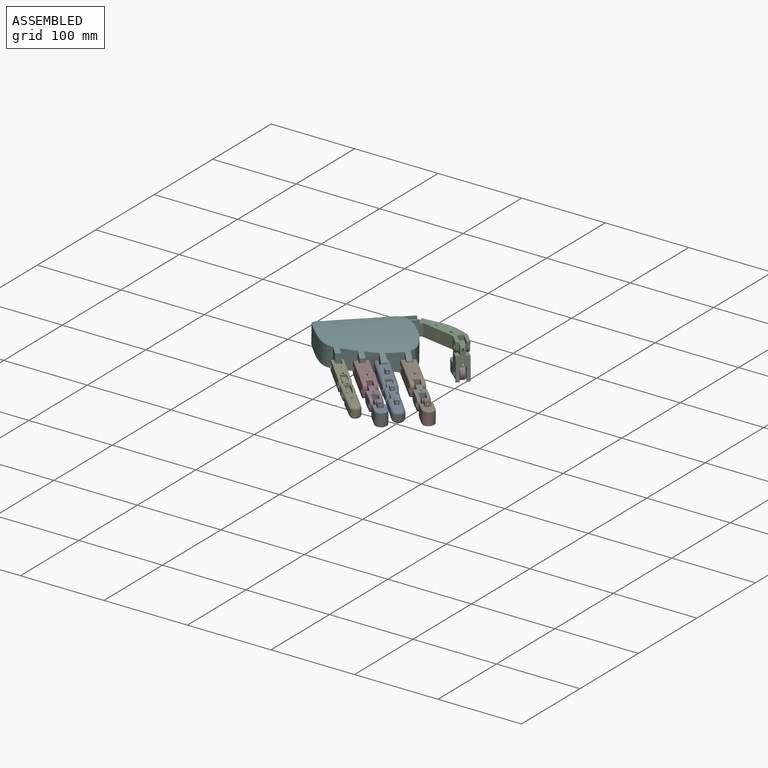
[diagram: assembled view]
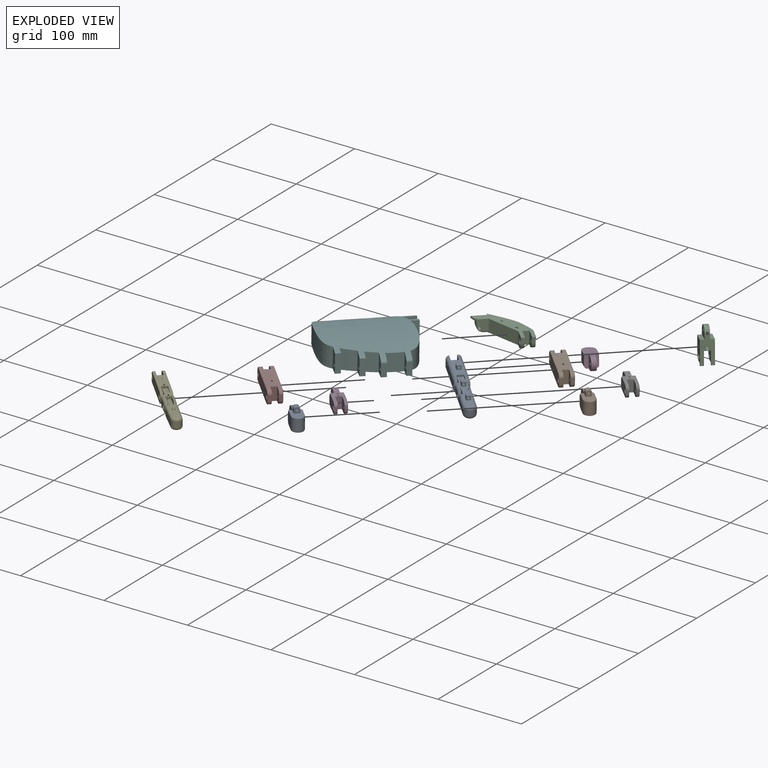
[diagram: exploded view]
GUIDED TOUR — MATED ASSEMBLY WITH SUBASSEMBLIES (Onshape document 58f4713bba5ead0ff602a4fa, AutoMate assembly 58f4713bba5ead0ff602a4fa_5b2b427a5dbaa598ef088df7_5e958202b57f63572089bb10_default)

This assembly has 16 component occurrences arranged in 12 top-level units: 10 individual components plus 2 subassemblies (S0, S1). The tour has two levels: first the top level, where each subassembly is treated as one rigid unit; then each subassembly is toured internally in its own section (nesting deeper than one subassembly level is flattened into its subassembly's section).

Components are labeled P0..P15 across the whole record; subassembly units are labeled S0..S1. A mate is a constraint between two units; its type names the relative motion it leaves free:
  REVOLUTE — leaves rotation about the listed axis free (a hinge).
Axis/direction vectors are unit vectors and 'through' points are millimeter coordinates, both in the assembly's world frame.

TOP-LEVEL MATES (between units; each subassembly's internal mates are listed in its own section)
  1. REVOLUTE "Revolute 3": P6 <-> P2, axis (-0.707, -0.707, 0.011) through (-216.11, -60.89, -3.54) mm
  2. REVOLUTE "Revolute 1": P9 <-> P14, axis (0.707, 0.707, -0.011) through (-218.39, -124.71, -5.03) mm
  3. REVOLUTE "Revolute 9": P3 <-> P4, axis (-0.707, -0.707, 0.008) through (-193.27, 8.58, -29.24) mm
  4. REVOLUTE "Revolute 1": P2 <-> P7, axis (0.707, 0.707, -0.011) through (-181.84, -95.89, -5.03) mm
  5. REVOLUTE "Revolute 4": P6 <-> P9, axis (0.707, 0.707, -0.011) through (-248.04, -85.13, -3.03) mm
  6. REVOLUTE "Revolute 5": S1 <-> P6, axis (0.707, 0.707, -0.011) through (-275.56, -99.13, -2.62) mm
  7. REVOLUTE "Revolute 2": P12 <-> P7, axis (-0.707, -0.707, 0.011) through (-156.74, -120.28, -5.03) mm
  8. REVOLUTE "Revolute 6": S0 <-> P6, axis (-0.707, -0.707, 0.011) through (-229.83, -74.61, -3.31) mm
  9. REVOLUTE "Revolute 2": P11 <-> P14, axis (-0.707, -0.707, 0.011) through (-193.29, -149.10, -5.03) mm
  10. REVOLUTE "Revolute 8": P13 <-> P3, axis (-0.707, -0.707, 0.008) through (-194.69, 10.30, -1.33) mm

TOP-LEVEL ASSEMBLY ORDER
  1. P6 — the base component [order heuristic]
  2. S0 — core [order heuristic]
  3. P14 [order verified]
  4. P13 — core [order heuristic]
  5. P4 — core [order heuristic]
  6. P9 — core [order heuristic]
  7. P2 — core [order heuristic]
  8. P3 — core [order heuristic]
  9. P11 [order verified]
  10. P12 [order verified]
  11. P7 [order verified]
  12. S1 — core [order heuristic]
Order-tag legend:
  [order verified] — this step's position reverses a verified removal order: the component was checked to insert without passing through the ones already placed.
  [order heuristic] — the first 8 components form the assembly's core: parts whose collision-free extraction could not be verified, listed in mate-graph order.

Of the 16 component occurrences, 3 carry the full construction recipe — the FeatureScript program that regenerates the part's solid from scratch; the rest are supplied as boundary geometry only. Each toured unit is shown spotlighted twice — assembled, then exploded with a leader line back to its socket (green = recipe-attached component, orange = geometry-only, blue = subassembly unit; the rest desaturated gray).
NOTE — this tour is split across 2 documents so each fits a 32k-token context. This is document 1: the component sections continue in the remaining 1 document, each repeating the header above.
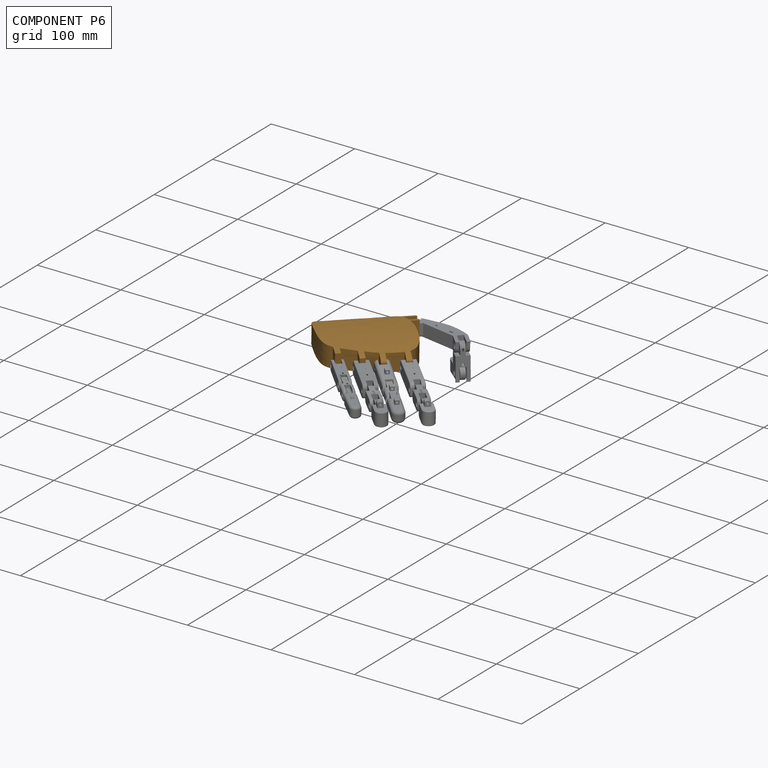
[diagram: component P6 — assembled]
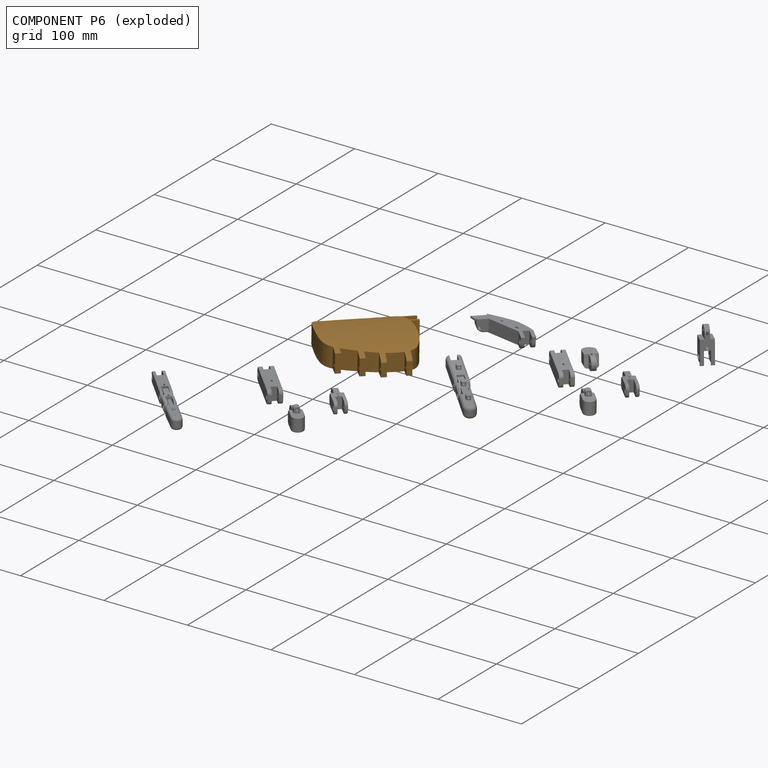
[diagram: component P6 — exploded]
COMPONENT P6 — geometry summary (no construction recipe available for this part):
  bounding box: 107.3 x 102.2 x 24.7 mm
  B-rep topology: 1 solid, 39 faces, 232 edges
  volume: 192250 mm^3 (71% of its bounding box)
Held by: REVOLUTE mate "Revolute 3" to P2; REVOLUTE mate "Revolute 4" to P9; REVOLUTE mate "Revolute 5" to P5; REVOLUTE mate "Revolute 6" to P0.
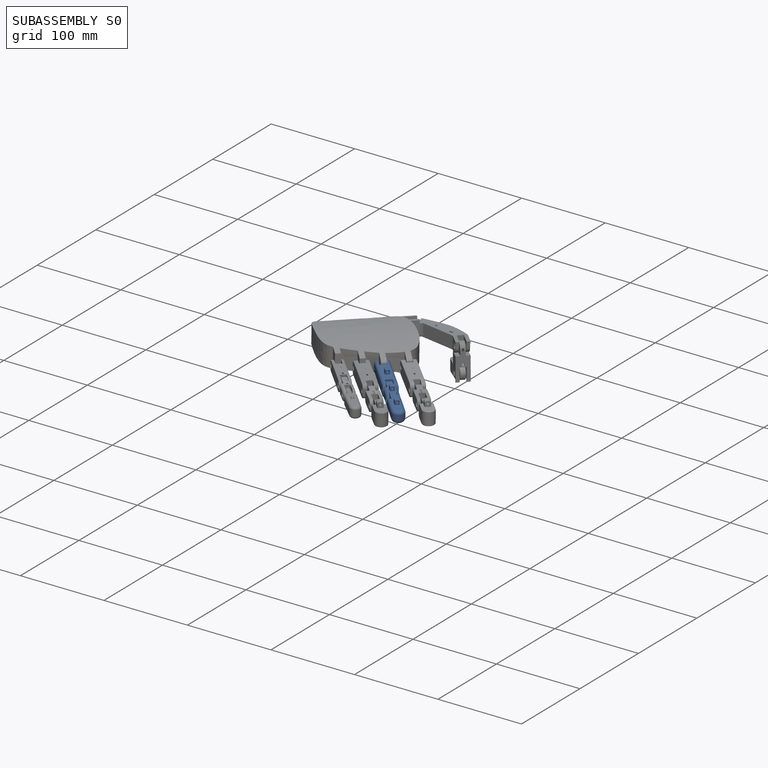
[diagram: subassembly S0 — assembled]
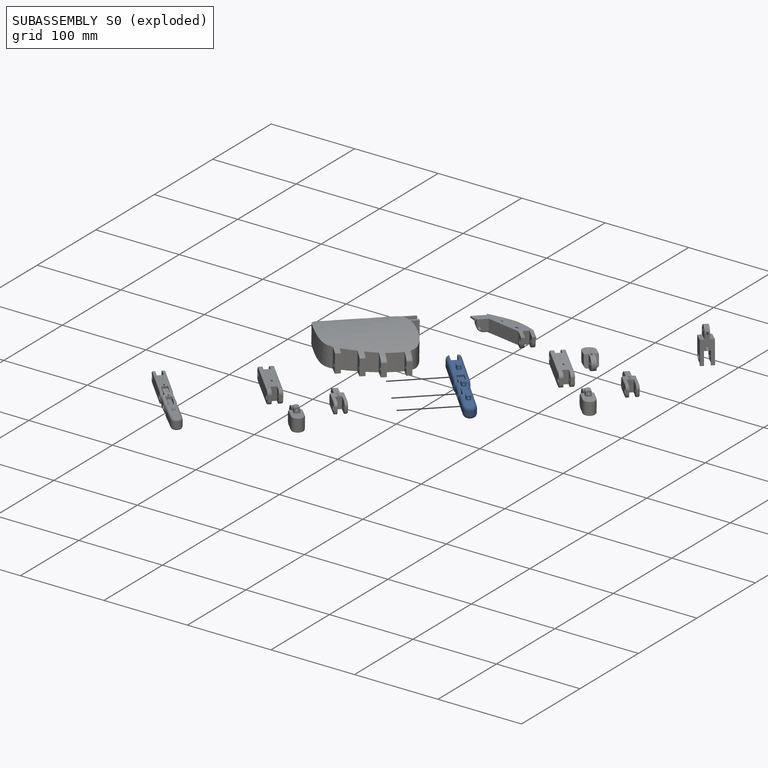
[diagram: subassembly S0 — exploded]
SUBASSEMBLY S0 — 3 components (P0, P1, P10), of which 0 recipe-attached; toured below.
Held by: REVOLUTE mate "Revolute 6" to P6.
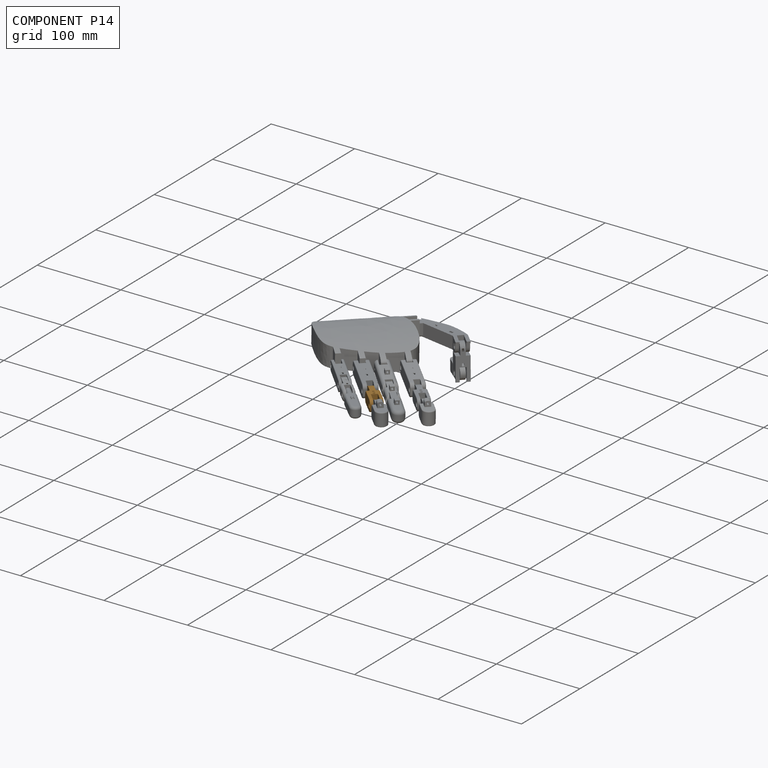
[diagram: component P14 — assembled]
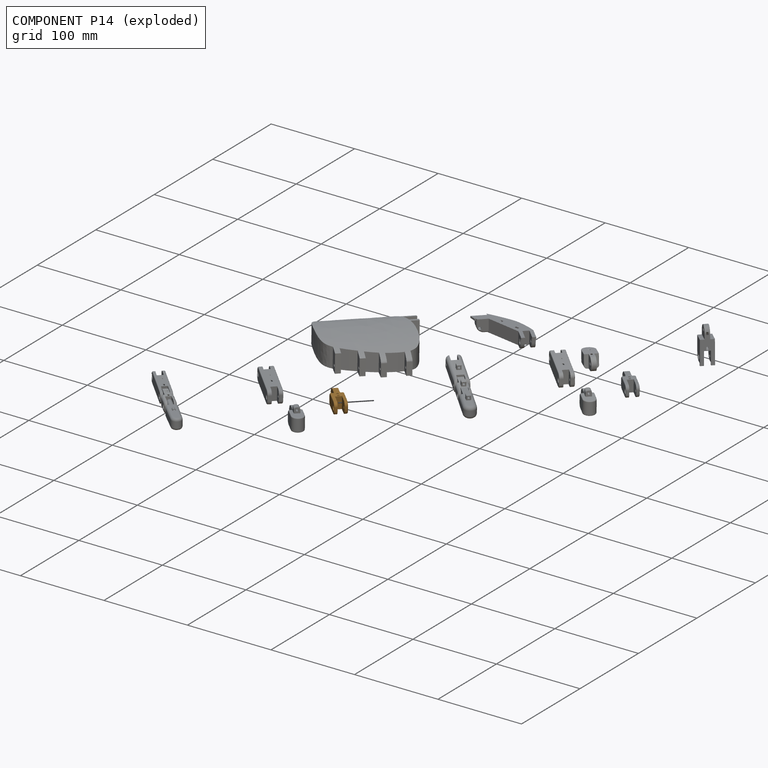
[diagram: component P14 — exploded]
COMPONENT P14 — geometry summary (no construction recipe available for this part):
  bounding box: 42.5 x 14.8 x 14.0 mm
  B-rep topology: 1 solid, 67 faces, 348 edges
  volume: 4544 mm^3 (52% of its bounding box)
  symmetry: mirror-symmetric across its y mid-plane
Held by: REVOLUTE mate "Revolute 1" to P9; REVOLUTE mate "Revolute 2" to P11.
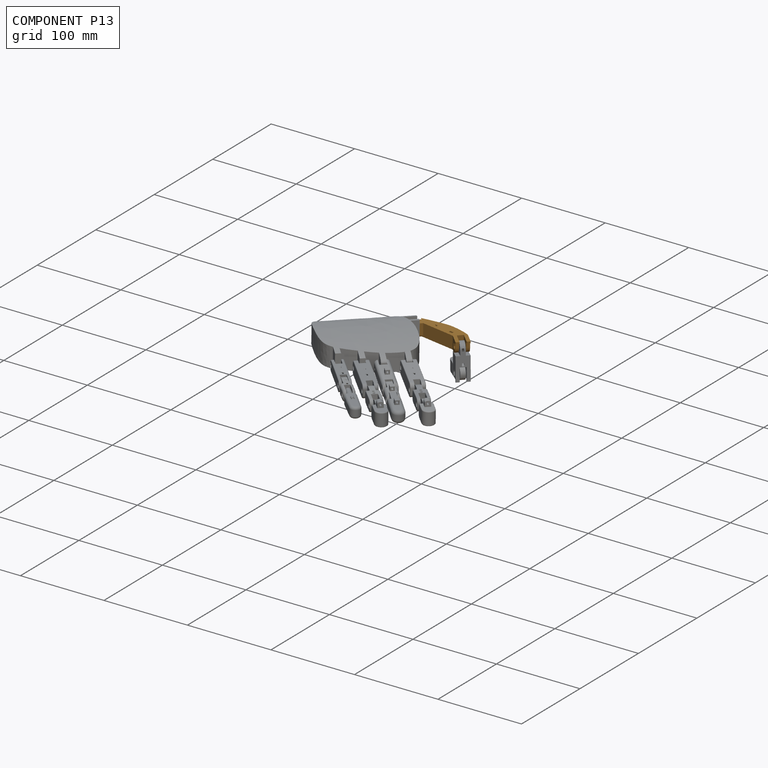
[diagram: component P13 — assembled]
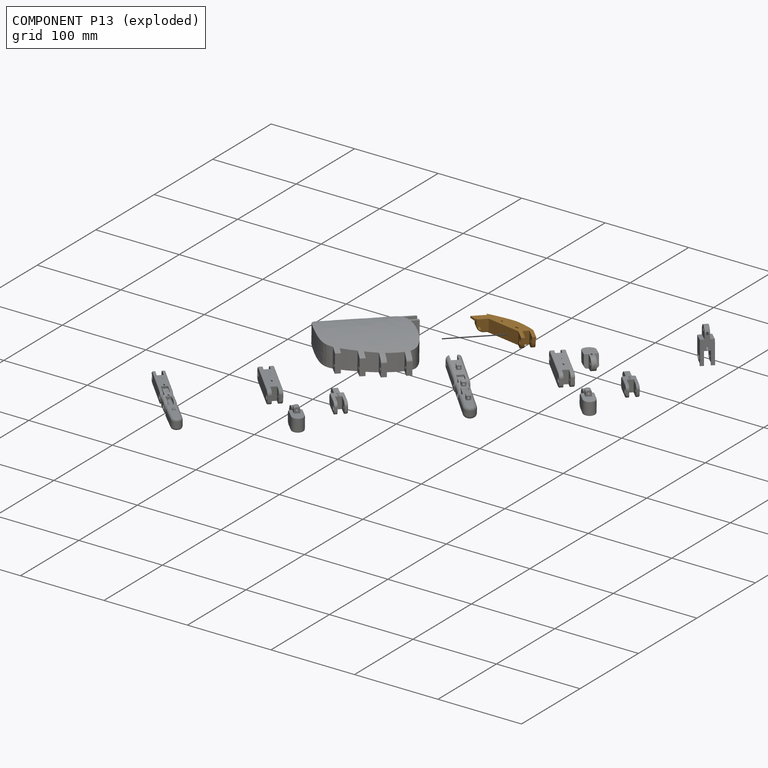
[diagram: component P13 — exploded]
COMPONENT P13 — geometry summary (no construction recipe available for this part):
  bounding box: 60.6 x 55.5 x 15.7 mm
  B-rep topology: 1 solid, 48 faces, 268 edges
  volume: 12539 mm^3 (24% of its bounding box)
Held by: REVOLUTE mate "Revolute 8" to P3.
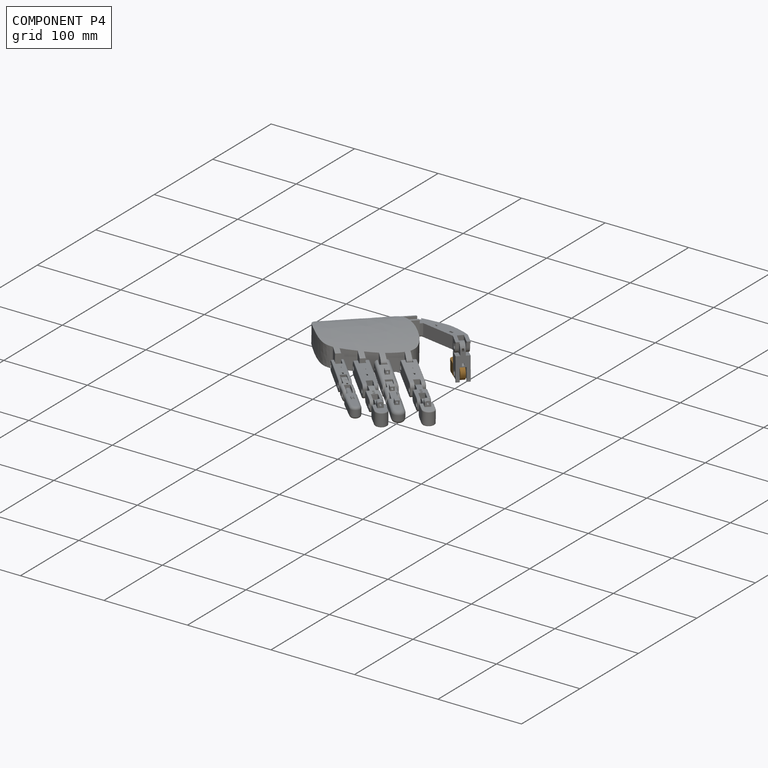
[diagram: component P4 — assembled]
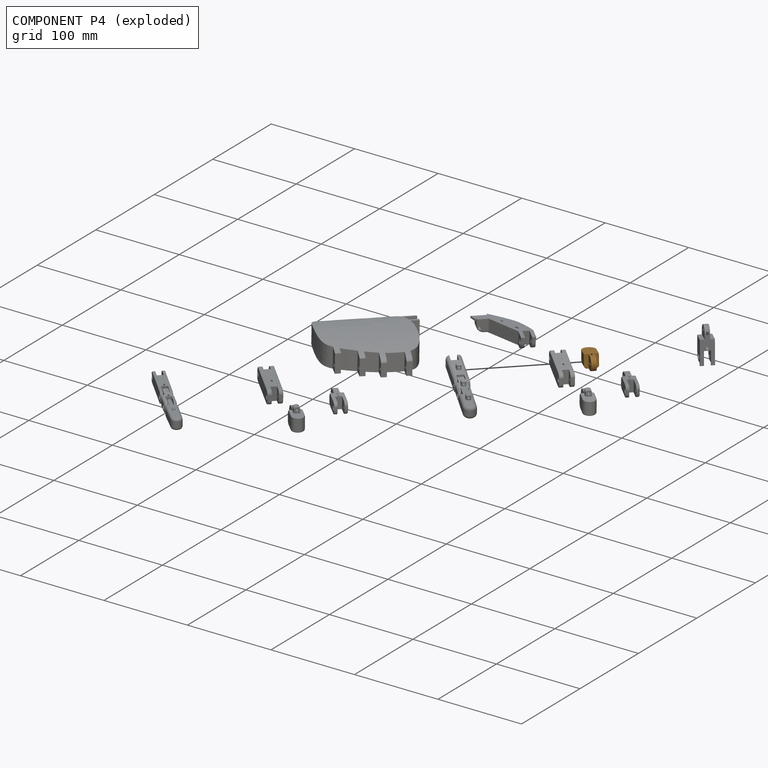
[diagram: component P4 — exploded]
COMPONENT P4 — geometry summary (no construction recipe available for this part):
  bounding box: 37.6 x 16.2 x 15.0 mm
  B-rep topology: 1 solid, 22 faces, 116 edges
  volume: 5392 mm^3 (59% of its bounding box)
  symmetry: mirror-symmetric across its x mid-plane
Held by: REVOLUTE mate "Revolute 9" to P3.
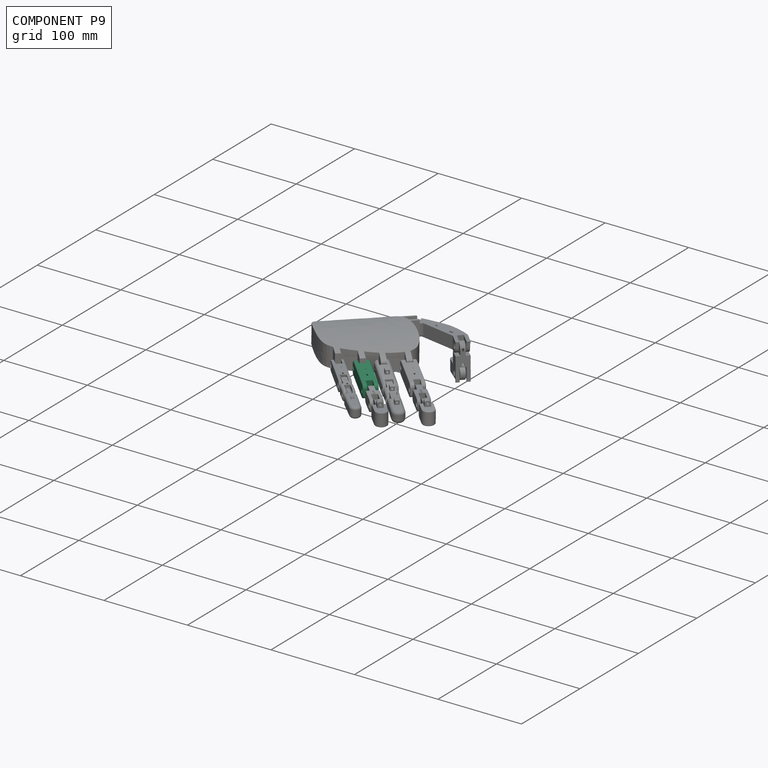
[diagram: component P9 — assembled]
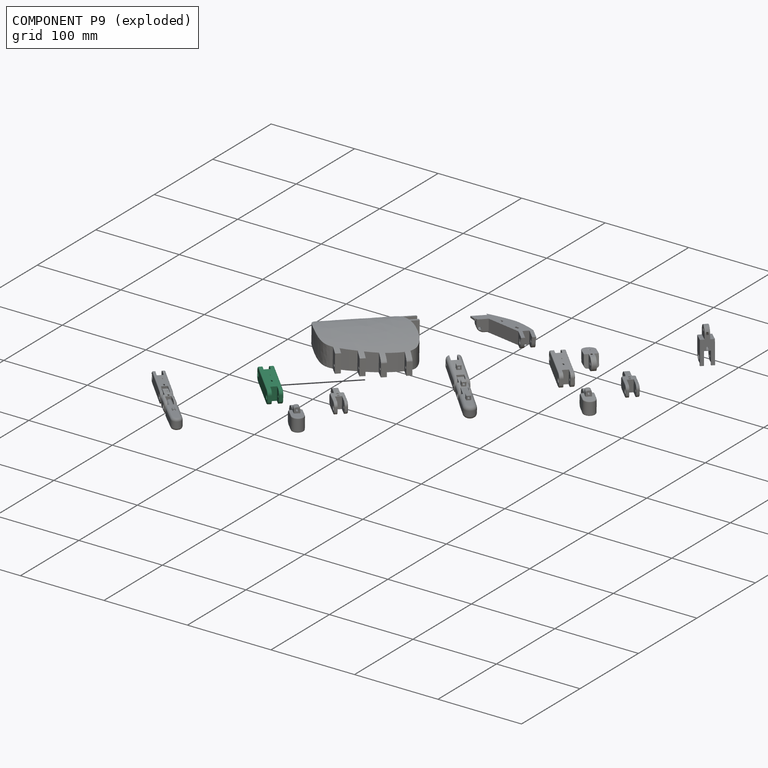
[diagram: component P9 — exploded]
COMPONENT P9 — same part as P2 (CADFS 00713738); its construction recipe is shown at P2.
Held by: REVOLUTE mate "Revolute 1" to P14; REVOLUTE mate "Revolute 4" to P6.
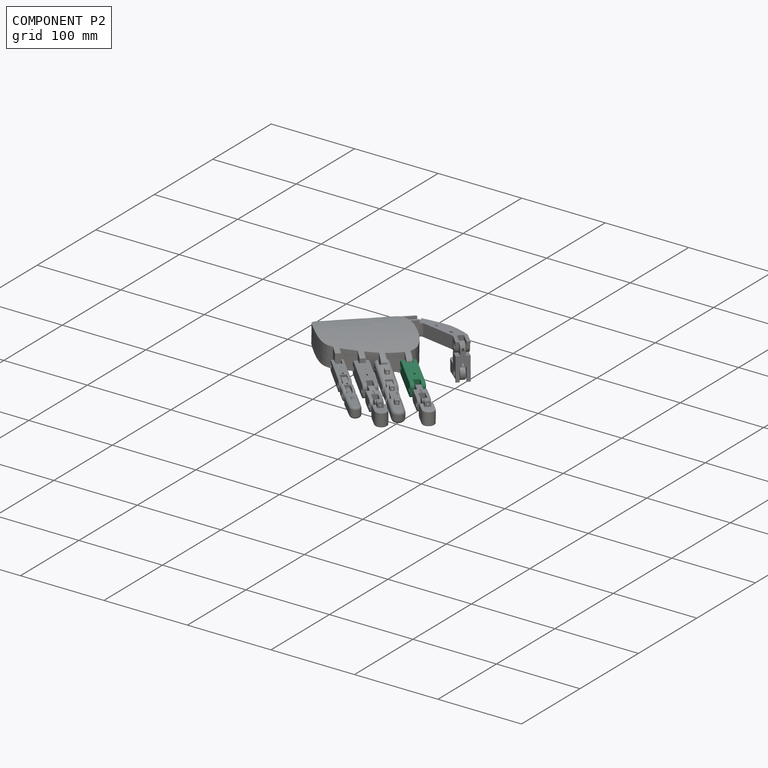
[diagram: component P2 — assembled]
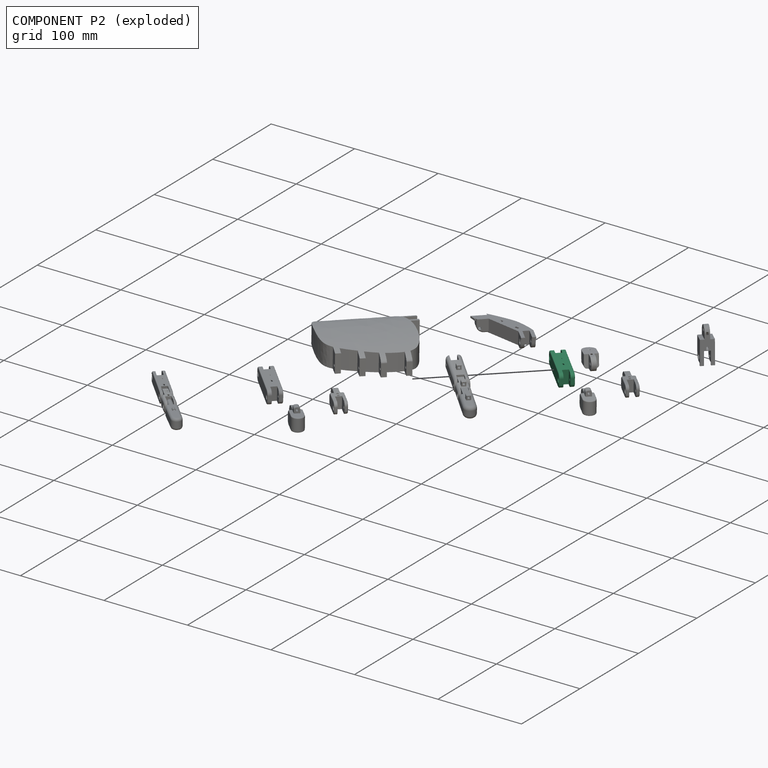
[diagram: component P2 — exploded]
COMPONENT P2 — recipe-attached (CADFS 00713738, mesh-verified: the recipe's output STEP matches this component's geometry to below the mesh-comparison resolution (tessellation chordal tolerance ~0.0957 mm)).
Held by: REVOLUTE mate "Revolute 3" to P6; REVOLUTE mate "Revolute 1" to P7.
Construction recipe (FeatureScript — the CAD program that rebuilds this solid; sketch coordinates are in the units given by the * unit suffixes, e.g. mm):

FeatureScript 1511;
import(path : "onshape/std/geometry.fs", version : "1511.0");
import(path : "onshape/std/common.fs", version : "1511.0");
const mm = millimeter;
const VERTEX = EntityType.VERTEX;
const EDGE = EntityType.EDGE;
const FACE = EntityType.FACE;
const BODY = EntityType.BODY;
function v(x, y){return vector(x, y);}
function OD(order){return orderDisambiguation(order);}
function OSD(set){return originalSetDisambiguation(set);}
function TD(topology){return topologyDisambiguation(topology);}
function TDD(query){return trueDependencyDisambiguation(query);}
function sQuery(a, b, c) {return sketchEntityQuery(a, b, c);}

annotation { "Feature Type Name" : "Feature", "Feature Type Description" : "" }
export const myFeature = defineFeature(function(context is Context, id is Id, definition is map)
    precondition{}
    {
        {
            var Q0;
            Q0=qCreatedBy(makeId("Front.planeOp"),FACE);
            var sketch = newSketch(context, id + "F0", { "sketchPlane" : qUnion([Q0])});
            skLineSegment(sketch, "E0.bottom", {"start": v(8, -28.75) * mm, "end": v(-8, -28.75) * mm});
            skLineSegment(sketch, "E0.top", {"start": v(8, 28.75) * mm, "end": v(-8, 28.75) * mm});
            skLineSegment(sketch, "E0.left", {"start": v(8, -28.75) * mm, "end": v(8, 28.75) * mm});
            skLineSegment(sketch, "E0.right", {"start": v(-8, -28.75) * mm, "end": v(-8, 28.75) * mm});
            skPoint(sketch, "E0.middle", {"position": v(0, 0) * mm});
            skLineSegment(sketch, "E1.top", {"start": v(-3.5, -18.75) * mm, "end": v(3.5, -18.75) * mm});
            skLineSegment(sketch, "E1.left", {"start": v(-3.5, -28.75) * mm, "end": v(-3.5, -18.75) * mm});
            skLineSegment(sketch, "E1.right", {"start": v(3.5, -28.75) * mm, "end": v(3.5, -18.75) * mm});
            skLineSegment(sketch, "E2.bottom", {"start": v(-3.5, 28.75) * mm, "end": v(3.5, 28.75) * mm});
            skLineSegment(sketch, "E2.top", {"start": v(-3.5, 18.75) * mm, "end": v(3.5, 18.75) * mm});
            skLineSegment(sketch, "E2.left", {"start": v(-3.5, 28.75) * mm, "end": v(-3.5, 18.75) * mm});
            skLineSegment(sketch, "E2.right", {"start": v(3.5, 28.75) * mm, "end": v(3.5, 18.75) * mm});
            skPoint(sketch, "E3", {"position": v(0, 23) * mm});
            skPoint(sketch, "E4", {"position": v(0, -26) * mm});
            skPoint(sketch, "E5", {"position": v(0, 18.75) * mm});
            skLineSegment(sketch, "E6", {"start": v(-3.5, -28.75) * mm, "end": v(3.5, -28.75) * mm});
            skLineSegment(sketch, "E7.bottom", {"start": v(3.25, 3.75) * mm, "end": v(-3.25, 3.75) * mm});
            skLineSegment(sketch, "E7.top", {"start": v(3.25, -3.75) * mm, "end": v(-3.25, -3.75) * mm});
            skLineSegment(sketch, "E7.left", {"start": v(3.25, 3.75) * mm, "end": v(3.25, -3.75) * mm});
            skLineSegment(sketch, "E7.right", {"start": v(-3.25, 3.75) * mm, "end": v(-3.25, -3.75) * mm});
            skSolve(sketch);
        }
        {
            var Q0;
            {var subQ1=sQuery(id+"F0.wireOp",EDGE,"E0.left");Q0=makeQuery(id+"F0.imprint","IMPRINT",FACE,{"disambiguationData":[TD([[makeQuery(id+"F0.imprint","IMPRINT",EDGE,{"derivedFrom":subQ1}),1.0]])]});}
            extrude(context, id + "F1", {"entities" : qUnion([Q0]), "endBound" : BoundingType.SYMMETRIC, "depth" : 16 * mm});
        }
        {
            var Q0;
            Q0=makeQuery(id+"F1.opExtrude","SWEPT_FACE",FACE,{"disambiguationData":[OSD([sQuery(id+"F0.wireOp",EDGE,"E0.left")])]});
            var sketch = newSketch(context, id + "F2", { "sketchPlane" : qUnion([Q0])});
            skLineSegment(sketch, "E8", {"start": v(0, 28.75) * mm, "end": v(0, 24.5) * mm});
            skPoint(sketch, "E8.endSnap0", {"position": v(0, 28.75) * mm});
            skLineSegment(sketch, "E9", {"start": v(0, -28.75) * mm, "end": v(0, -24.5) * mm});
            skPoint(sketch, "E9.endSnap0", {"position": v(0, -28.75) * mm});
            skCircle(sketch, "E10", {"center": v(0, 24.5) * mm, "radius": 2.75 * mm});
            skCircle(sketch, "E11", {"center": v(0, -24.5) * mm, "radius": 2.75 * mm});
            skCircle(sketch, "E12", {"center": v(0, 24.5) * mm, "radius": 1.5 * mm});
            skCircle(sketch, "E13", {"center": v(0, -24.5) * mm, "radius": 1.5 * mm});
            skSolve(sketch);
        }
        {
            var Q0;
            Q0=makeQuery(id+"F2.imprint","IMPRINT",FACE,{"disambiguationData":[TD([[makeQuery(id+"F2.imprint","IMPRINT",EDGE,{"derivedFrom":sQuery(id+"F2.wireOp",EDGE,"E10")}),1.0]])]});
            var Q1;
            Q1=makeQuery(id+"F2.imprint","IMPRINT",FACE,{"disambiguationData":[TD([[makeQuery(id+"F2.imprint","IMPRINT",EDGE,{"derivedFrom":sQuery(id+"F2.wireOp",EDGE,"E11")}),1.0]])]});
            extrude(context, id + "F3", {"entities" : qUnion([Q0, Q1]), "operationType" : NewBodyOperationType.REMOVE, "oppositeDirection" : true, "depth" : 2 * mm});
        }
        {
            var Q0;
            Q0=makeQuery(id+"F3.boolean.opBoolean","SPLIT",FACE,{"disambiguationData":[TD([makeQuery(id+"F3.opExtrude","SWEPT_FACE",FACE,{"disambiguationData":[OSD([sQuery(id+"F2.wireOp",EDGE,"E12")])]})])],"derivedFrom":makeQuery(id+"F1.opExtrude","SWEPT_FACE",FACE,{"disambiguationData":[OSD([sQuery(id+"F0.wireOp",EDGE,"E0.left")])]})});
            var Q1;
            Q1=makeQuery(id+"F3.boolean.opBoolean","SPLIT",FACE,{"disambiguationData":[TD([makeQuery(id+"F3.opExtrude","SWEPT_FACE",FACE,{"disambiguationData":[OSD([sQuery(id+"F2.wireOp",EDGE,"E13")])]})])],"derivedFrom":makeQuery(id+"F1.opExtrude","SWEPT_FACE",FACE,{"disambiguationData":[OSD([sQuery(id+"F0.wireOp",EDGE,"E0.left")])]})});
            extrude(context, id + "F4", {"entities" : qUnion([Q0, Q1]), "operationType" : NewBodyOperationType.REMOVE, "oppositeDirection" : true, "depth" : 25 * mm});
        }
        {
            var Q0;
            Q0=makeQuery(id+"F1.opExtrude","SWEPT_FACE",FACE,{"disambiguationData":[OSD([sQuery(id+"F0.wireOp",EDGE,"E0.right")])]});
            var sketch = newSketch(context, id + "F5", { "sketchPlane" : qUnion([Q0])});
            skLineSegment(sketch, "E14", {"start": v(0, 28.75) * mm, "end": v(0, 24.5) * mm});
            skLineSegment(sketch, "E15", {"start": v(0, -28.75) * mm, "end": v(0, -24.5) * mm});
            skCircle(sketch, "E16.cCircle", {"center": v(0, 24.5) * mm, "radius": 2.65 * mm, "construction": true});
            skLineSegment(sketch, "E16.0", {"start": v(3.06, 24.55) * mm, "end": v(1.57, 21.88) * mm});
            skLineSegment(sketch, "E16.1", {"start": v(1.57, 21.88) * mm, "end": v(-1.49, 21.83) * mm});
            skLineSegment(sketch, "E16.2", {"start": v(-1.49, 21.83) * mm, "end": v(-3.06, 24.45) * mm});
            skLineSegment(sketch, "E16.3", {"start": v(-3.06, 24.45) * mm, "end": v(-1.57, 27.12) * mm});
            skLineSegment(sketch, "E16.4", {"start": v(-1.57, 27.12) * mm, "end": v(1.49, 27.17) * mm});
            skLineSegment(sketch, "E16.5", {"start": v(1.49, 27.17) * mm, "end": v(3.06, 24.55) * mm});
            skPoint(sketch, "E16.0.midPoint", {"position": v(2.32, 23.21) * mm});
            skCircle(sketch, "E17.cCircle", {"center": v(0, -24.5) * mm, "radius": 2.65 * mm, "construction": true});
            skLineSegment(sketch, "E17.0", {"start": v(1.5, -21.83) * mm, "end": v(3.06, -24.46) * mm});
            skLineSegment(sketch, "E17.1", {"start": v(3.06, -24.46) * mm, "end": v(1.56, -27.13) * mm});
            skLineSegment(sketch, "E17.2", {"start": v(1.56, -27.13) * mm, "end": v(-1.5, -27.17) * mm});
            skLineSegment(sketch, "E17.3", {"start": v(-1.5, -27.17) * mm, "end": v(-3.06, -24.54) * mm});
            skLineSegment(sketch, "E17.4", {"start": v(-3.06, -24.54) * mm, "end": v(-1.56, -21.87) * mm});
            skLineSegment(sketch, "E17.5", {"start": v(-1.56, -21.87) * mm, "end": v(1.5, -21.83) * mm});
            skPoint(sketch, "E17.0.midPoint", {"position": v(2.28, -23.15) * mm});
            skSolve(sketch);
        }
        {
            var Q0;
            {var subQ0=sQuery(id+"F5.wireOp",EDGE,"E16.0");Q0=makeQuery(id+"F5.imprint","IMPRINT",FACE,{"disambiguationData":[TD([[makeQuery(id+"F5.imprint","IMPRINT",EDGE,{"derivedFrom":subQ0}),-1.0]])]});}
            var Q1;
            Q1=makeQuery(id+"F5.imprint","IMPRINT",FACE,{"disambiguationData":[TD([[makeQuery(id+"F5.imprint","IMPRINT",EDGE,{"derivedFrom":sQuery(id+"F5.wireOp",EDGE,"E17.0")}),-1.0]])]});
            extrude(context, id + "F6", {"entities" : qUnion([Q0, Q1]), "operationType" : NewBodyOperationType.REMOVE, "oppositeDirection" : true, "depth" : 2 * mm});
        }
        {
            var Q0;
            {var subQ0=sQuery(id+"F0.wireOp",EDGE,"E0.top");Q0=makeQuery(id+"F1.opExtrude","CAP_EDGE",EDGE,{"disambiguationData":[OSD([subQ0]),TDD([makeQuery(id+"F0.imprint","IMPRINT",EDGE,{"disambiguationData":[TD([[makeQuery(id+"F0.imprint","INTERSECT",VERTEX,{"derivedFrom":[subQ0,sQuery(id+"F0.wireOp",EDGE,"E0.left")]}),-1.0]])],"derivedFrom":subQ0})])],"isStart":false});}
            var Q1;
            {var subQ0=sQuery(id+"F0.wireOp",EDGE,"E0.top");Q1=makeQuery(id+"F1.opExtrude","CAP_EDGE",EDGE,{"disambiguationData":[OSD([subQ0]),TDD([makeQuery(id+"F0.imprint","IMPRINT",EDGE,{"disambiguationData":[TD([[makeQuery(id+"F0.imprint","INTERSECT",VERTEX,{"derivedFrom":[subQ0,sQuery(id+"F0.wireOp",EDGE,"E0.left")]}),-1.0]])],"derivedFrom":subQ0})])],"isStart":true});}
            var Q2;
            {var subQ0=sQuery(id+"F0.wireOp",EDGE,"E0.top");Q2=makeQuery(id+"F1.opExtrude","CAP_EDGE",EDGE,{"disambiguationData":[OSD([subQ0]),TDD([makeQuery(id+"F0.imprint","IMPRINT",EDGE,{"disambiguationData":[TD([[makeQuery(id+"F0.imprint","INTERSECT",VERTEX,{"derivedFrom":[subQ0,sQuery(id+"F0.wireOp",EDGE,"E0.right")]}),1.0]])],"derivedFrom":subQ0})])],"isStart":true});}
            var Q3;
            {var subQ0=sQuery(id+"F0.wireOp",EDGE,"E0.top");Q3=makeQuery(id+"F1.opExtrude","CAP_EDGE",EDGE,{"disambiguationData":[OSD([subQ0]),TDD([makeQuery(id+"F0.imprint","IMPRINT",EDGE,{"disambiguationData":[TD([[makeQuery(id+"F0.imprint","INTERSECT",VERTEX,{"derivedFrom":[subQ0,sQuery(id+"F0.wireOp",EDGE,"E0.right")]}),1.0]])],"derivedFrom":subQ0})])],"isStart":false});}
            fillet(context, id + "F7", {"entities" : qUnion([Q0, Q1, Q2, Q3]), "radius" : 5 * mm, "tangentPropagation" : true, "allowEdgeOverflow" : false});
        }
        {
            var Q0;
            {var subQ0=sQuery(id+"F0.wireOp",EDGE,"E0.bottom");Q0=makeQuery(id+"F1.opExtrude","CAP_EDGE",EDGE,{"disambiguationData":[OSD([subQ0]),TDD([makeQuery(id+"F0.imprint","IMPRINT",EDGE,{"disambiguationData":[TD([[makeQuery(id+"F0.imprint","INTERSECT",VERTEX,{"derivedFrom":[subQ0,sQuery(id+"F0.wireOp",EDGE,"E0.left")]}),-1.0]])],"derivedFrom":subQ0})])],"isStart":true});}
            var Q1;
            {var subQ0=sQuery(id+"F0.wireOp",EDGE,"E0.bottom");Q1=makeQuery(id+"F1.opExtrude","CAP_EDGE",EDGE,{"disambiguationData":[OSD([subQ0]),TDD([makeQuery(id+"F0.imprint","IMPRINT",EDGE,{"disambiguationData":[TD([[makeQuery(id+"F0.imprint","INTERSECT",VERTEX,{"derivedFrom":[subQ0,sQuery(id+"F0.wireOp",EDGE,"E0.right")]}),1.0]])],"derivedFrom":subQ0})])],"isStart":true});}
            var Q2;
            {var subQ0=sQuery(id+"F0.wireOp",EDGE,"E0.bottom");Q2=makeQuery(id+"F1.opExtrude","CAP_EDGE",EDGE,{"disambiguationData":[OSD([subQ0]),TDD([makeQuery(id+"F0.imprint","IMPRINT",EDGE,{"disambiguationData":[TD([[makeQuery(id+"F0.imprint","INTERSECT",VERTEX,{"derivedFrom":[subQ0,sQuery(id+"F0.wireOp",EDGE,"E0.left")]}),-1.0]])],"derivedFrom":subQ0})])],"isStart":false});}
            var Q3;
            {var subQ0=sQuery(id+"F0.wireOp",EDGE,"E0.bottom");Q3=makeQuery(id+"F1.opExtrude","CAP_EDGE",EDGE,{"disambiguationData":[OSD([subQ0]),TDD([makeQuery(id+"F0.imprint","IMPRINT",EDGE,{"disambiguationData":[TD([[makeQuery(id+"F0.imprint","INTERSECT",VERTEX,{"derivedFrom":[subQ0,sQuery(id+"F0.wireOp",EDGE,"E0.right")]}),1.0]])],"derivedFrom":subQ0})])],"isStart":false});}
            fillet(context, id + "F8", {"entities" : qUnion([Q0, Q1, Q2, Q3]), "radius" : 5 * mm, "tangentPropagation" : true, "allowEdgeOverflow" : false});
        }
        {
            var Q0;
            Q0=makeQuery(id+"F1.opExtrude","CAP_EDGE",EDGE,{"disambiguationData":[OSD([sQuery(id+"F0.wireOp",EDGE,"E0.right")])],"isStart":false});
            var Q1;
            Q1=makeQuery(id+"F1.opExtrude","CAP_EDGE",EDGE,{"disambiguationData":[OSD([sQuery(id+"F0.wireOp",EDGE,"E0.left")])],"isStart":false});
            var Q2;
            Q2=makeQuery(id+"F1.opExtrude","CAP_EDGE",EDGE,{"disambiguationData":[OSD([sQuery(id+"F0.wireOp",EDGE,"E0.left")])],"isStart":true});
            var Q3;
            Q3=makeQuery(id+"F1.opExtrude","CAP_EDGE",EDGE,{"disambiguationData":[OSD([sQuery(id+"F0.wireOp",EDGE,"E0.right")])],"isStart":true});
            fillet(context, id + "F9", {"entities" : qUnion([Q0, Q1, Q2, Q3]), "radius" : 1 * mm, "tangentPropagation" : true, "allowEdgeOverflow" : false});
        }
        {
            var Q0;
            Q0=makeQuery(id+"F0.imprint","IMPRINT",FACE,{"disambiguationData":[TD([[makeQuery(id+"F0.imprint","IMPRINT",EDGE,{"derivedFrom":sQuery(id+"F0.wireOp",EDGE,"E7.bottom")}),1.0]])]});
            extrude(context, id + "F10", {"entities" : qUnion([Q0]), "operationType" : NewBodyOperationType.ADD, "endBound" : BoundingType.SYMMETRIC, "depth" : 29 * mm});
        }
        {
            var Q0;
            {var subQ0=sQuery(id+"F0.wireOp",EDGE,"E7.right");var subQ1=sQuery(id+"F0.wireOp",EDGE,"E7.left");var subQ2=sQuery(id+"F0.wireOp",EDGE,"E7.top");var subQ3=sQuery(id+"F0.wireOp",EDGE,"E7.bottom");Q0=makeQuery(id+"F10.boolean.opBoolean","SPLIT",FACE,{"disambiguationData":[TD([makeQuery(id+"F10.opExtrude","CAP_FACE",FACE,{"disambiguationData":[OSD([subQ3,subQ2,subQ1,subQ0])],"isStart":true})])],"derivedFrom":makeQuery(id+"F10.opExtrude","SWEPT_FACE",FACE,{"disambiguationData":[OSD([subQ3])]})});}
            var sketch = newSketch(context, id + "F11", { "sketchPlane" : qUnion([Q0])});
            skPoint(sketch, "E18", {"position": v(0, 11.25) * mm});
            skCircle(sketch, "E19", {"center": v(0, 11.25) * mm, "radius": 1.25 * mm});
            skCircle(sketch, "E20", {"center": v(0, -11.25) * mm, "radius": 1.25 * mm});
            skSolve(sketch);
        }
        {
            var Q0;
            Q0=makeQuery(id+"F11.imprint","IMPRINT",FACE,{"disambiguationData":[TD([[makeQuery(id+"F11.imprint","IMPRINT",EDGE,{"derivedFrom":sQuery(id+"F11.wireOp",EDGE,"E19")}),1.0]])]});
            var Q1;
            Q1=makeQuery(id+"F11.imprint","IMPRINT",FACE,{"disambiguationData":[TD([[makeQuery(id+"F11.imprint","IMPRINT",EDGE,{"derivedFrom":sQuery(id+"F11.wireOp",EDGE,"E20")}),1.0]])]});
            extrude(context, id + "F12", {"entities" : qUnion([Q0, Q1]), "operationType" : NewBodyOperationType.REMOVE, "endBound" : BoundingType.THROUGH_ALL, "oppositeDirection" : true, "depth" : 25 * mm});
        }
        {
            var Q0;
            Q0=makeQuery(id+"F10.opExtrude","CAP_EDGE",EDGE,{"disambiguationData":[OSD([sQuery(id+"F0.wireOp",EDGE,"E7.right")])],"isStart":true});
            var Q1;
            Q1=makeQuery(id+"F10.opExtrude","CAP_EDGE",EDGE,{"disambiguationData":[OSD([sQuery(id+"F0.wireOp",EDGE,"E7.left")])],"isStart":true});
            var Q2;
            Q2=makeQuery(id+"F10.opExtrude","CAP_EDGE",EDGE,{"disambiguationData":[OSD([sQuery(id+"F0.wireOp",EDGE,"E7.right")])],"isStart":false});
            var Q3;
            Q3=makeQuery(id+"F10.opExtrude","CAP_EDGE",EDGE,{"disambiguationData":[OSD([sQuery(id+"F0.wireOp",EDGE,"E7.left")])],"isStart":false});
            fillet(context, id + "F13", {"entities" : qUnion([Q0, Q1, Q2, Q3]), "radius" : 2.5 * mm, "tangentPropagation" : true, "allowEdgeOverflow" : false});
        }
        {
            var Q0;
            {var subQ0=sQuery(id+"F0.wireOp",EDGE,"E7.right");var subQ1=sQuery(id+"F0.wireOp",EDGE,"E7.left");var subQ2=sQuery(id+"F0.wireOp",EDGE,"E7.top");var subQ3=sQuery(id+"F0.wireOp",EDGE,"E7.bottom");Q0=makeQuery(id+"F10.boolean.opBoolean","SPLIT",FACE,{"disambiguationData":[TD([makeQuery(id+"F10.opExtrude","CAP_FACE",FACE,{"disambiguationData":[OSD([subQ3,subQ2,subQ1,subQ0])],"isStart":false})])],"derivedFrom":makeQuery(id+"F10.opExtrude","SWEPT_FACE",FACE,{"disambiguationData":[OSD([subQ3])]})});}
            var sketch = newSketch(context, id + "F14", { "sketchPlane" : qUnion([Q0])});
            skLineSegment(sketch, "E21.0.0", {"start": v(-0.75, -14.5) * mm, "end": v(0.75, -14.5) * mm});
            skArc(sketch, "E21.0.1", {"start": v(0.75, -14.5) * mm, "mid": v(2.52, -13.77) * mm, "end": v(3.25, -12) * mm});
            skLineSegment(sketch, "E21.0.2", {"start": v(3.25, -12) * mm, "end": v(3.25, -8) * mm});
            skLineSegment(sketch, "E21.0.3", {"start": v(3.25, -8) * mm, "end": v(-3.25, -8) * mm});
            skLineSegment(sketch, "E21.0.4", {"start": v(-3.25, -8) * mm, "end": v(-3.25, -12) * mm});
            skArc(sketch, "E21.0.5", {"start": v(-3.25, -12) * mm, "mid": v(-2.52, -13.77) * mm, "end": v(-0.75, -14.5) * mm});
            skSolve(sketch);
        }
        {
            var Q0;
            Q0=makeQuery(id+"F14.imprint","IMPRINT",FACE,{"disambiguationData":[TD([[makeQuery(id+"F14.imprint","IMPRINT",EDGE,{"derivedFrom":sQuery(id+"F14.wireOp",EDGE,"E21.0.0")}),-1.0]])]});
            extrude(context, id + "F15", {"entities" : qUnion([Q0]), "operationType" : NewBodyOperationType.REMOVE, "endBound" : BoundingType.THROUGH_ALL, "oppositeDirection" : true, "depth" : 25 * mm});
        }
        {
            var Q0;
            Q0=qCreatedBy(makeId("Right.planeOp"),FACE);
            var sketch = newSketch(context, id + "F16", { "sketchPlane" : qUnion([Q0])});
            skLineSegment(sketch, "E22", {"start": v(-8, 18.75) * mm, "end": v(-8, 5.3) * mm});
            skArc(sketch, "E23", {"start": v(-8, -8) * mm, "mid": v(-4, 0) * mm, "end": v(-8, 8) * mm});
            skPoint(sketch, "E23.first.point", {"position": v(-8, -8) * mm});
            skPoint(sketch, "E23.second.point", {"position": v(-8, 8) * mm});
            skPoint(sketch, "E23.third.point", {"position": v(-24, 0) * mm});
            skArc(sketch, "E24", {"start": v(-8, -5.3) * mm, "mid": v(-6, 0) * mm, "end": v(-8, 5.3) * mm});
            skLineSegment(sketch, "E25", {"start": v(-8, 5.3) * mm, "end": v(-8, 8) * mm});
            skLineSegment(sketch, "E26", {"start": v(-8, -8) * mm, "end": v(-8, -5.3) * mm});
            skLineSegment(sketch, "E27.trimOffspring", {"start": v(-8, -5.3) * mm, "end": v(-8, -18.75) * mm});
            skSolve(sketch);
        }
        {
            var Q0;
            Q0=qSketchRegion(id+"F16",true);
            extrude(context, id + "F17", {"entities" : qUnion([Q0]), "operationType" : NewBodyOperationType.REMOVE, "endBound" : BoundingType.SYMMETRIC, "oppositeDirection" : true, "depth" : 2 * mm});
        }
    });
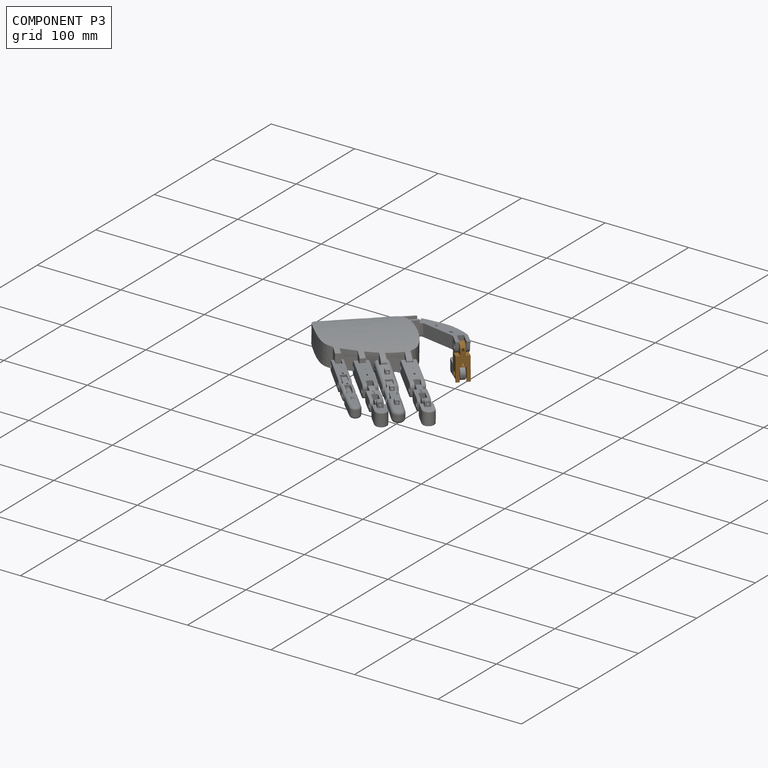
[diagram: component P3 — assembled]
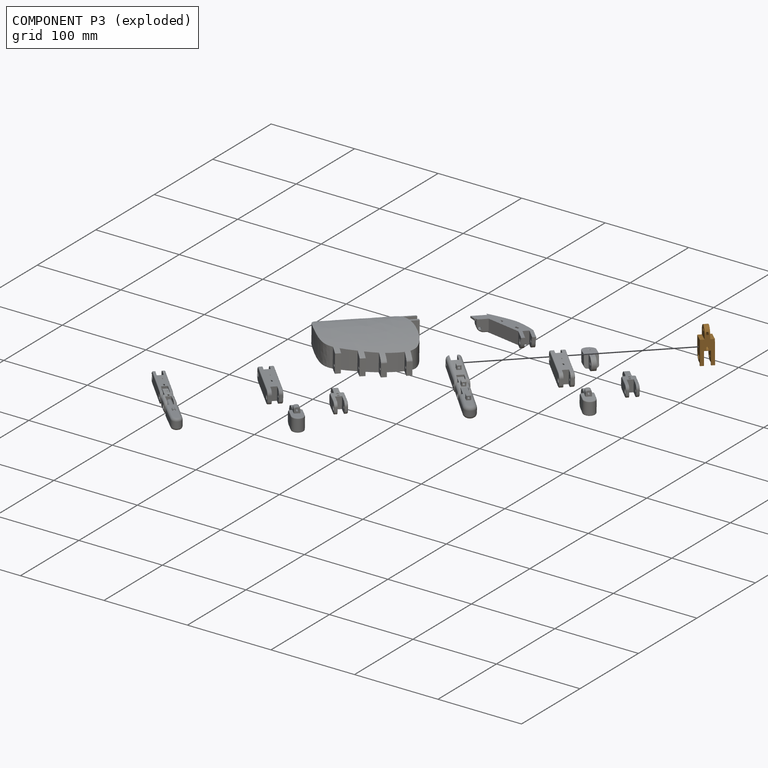
[diagram: component P3 — exploded]
COMPONENT P3 — geometry summary (no construction recipe available for this part):
  bounding box: 40.5 x 15.0 x 15.0 mm
  B-rep topology: 1 solid, 40 faces, 230 edges
  volume: 4787 mm^3 (53% of its bounding box)
Held by: REVOLUTE mate "Revolute 9" to P4; REVOLUTE mate "Revolute 8" to P13.
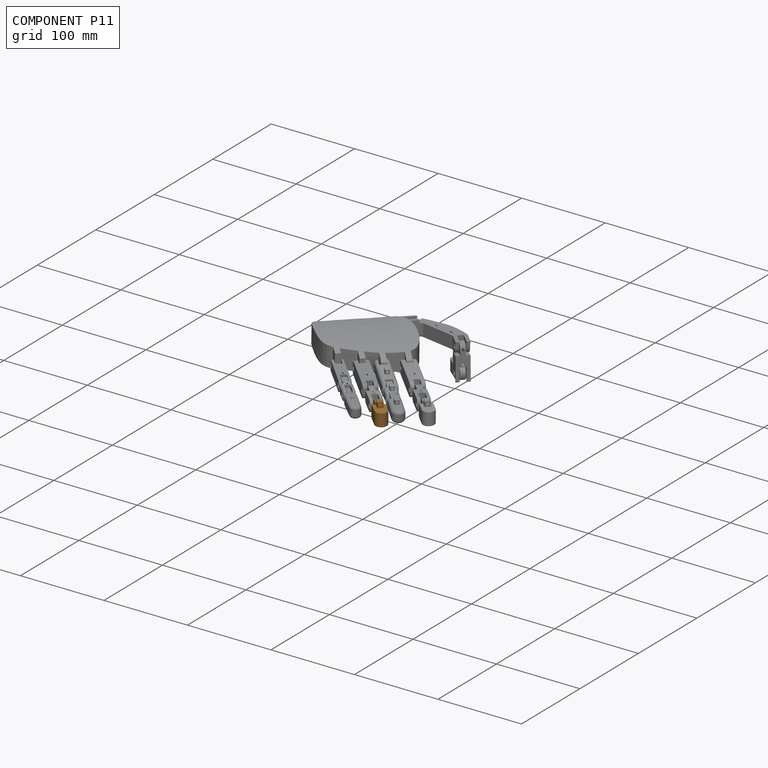
[diagram: component P11 — assembled]
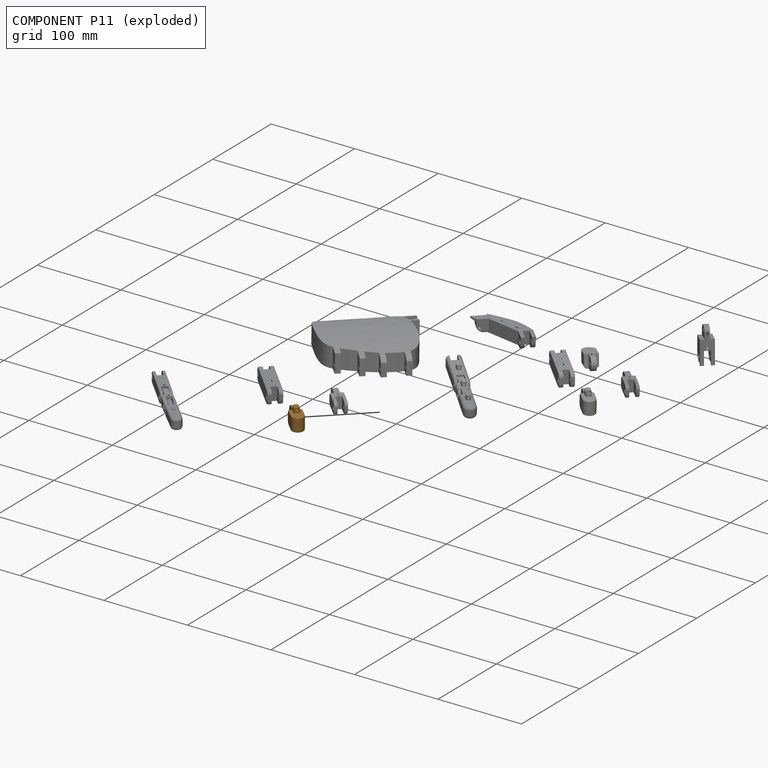
[diagram: component P11 — exploded]
COMPONENT P11 — geometry summary (no construction recipe available for this part):
  bounding box: 39.3 x 22.9 x 15.2 mm
  B-rep topology: 1 solid, 40 faces, 200 edges
  volume: 6272 mm^3 (46% of its bounding box)
  symmetry: mirror-symmetric across its x mid-plane
Held by: REVOLUTE mate "Revolute 2" to P14.
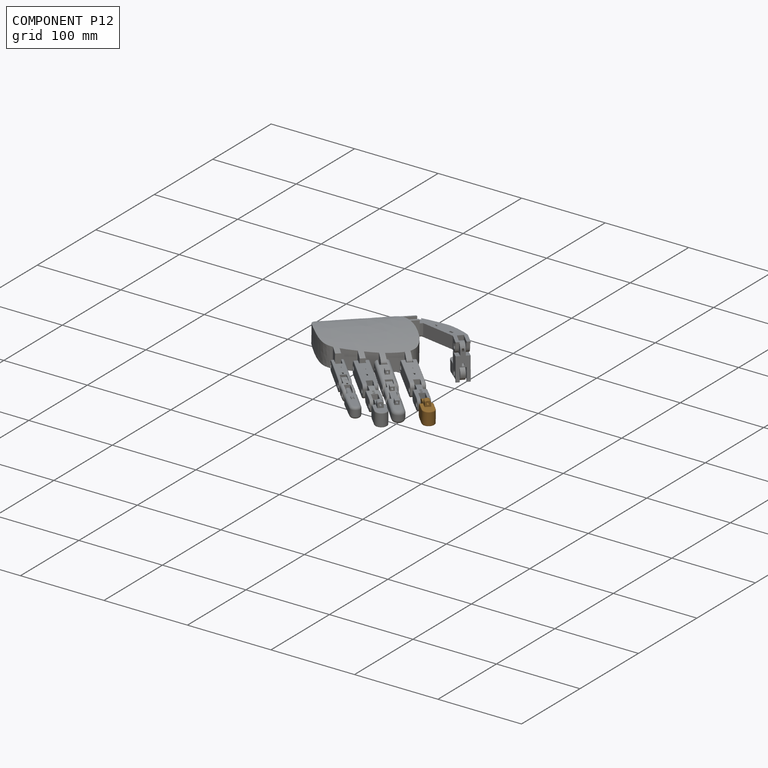
[diagram: component P12 — assembled]
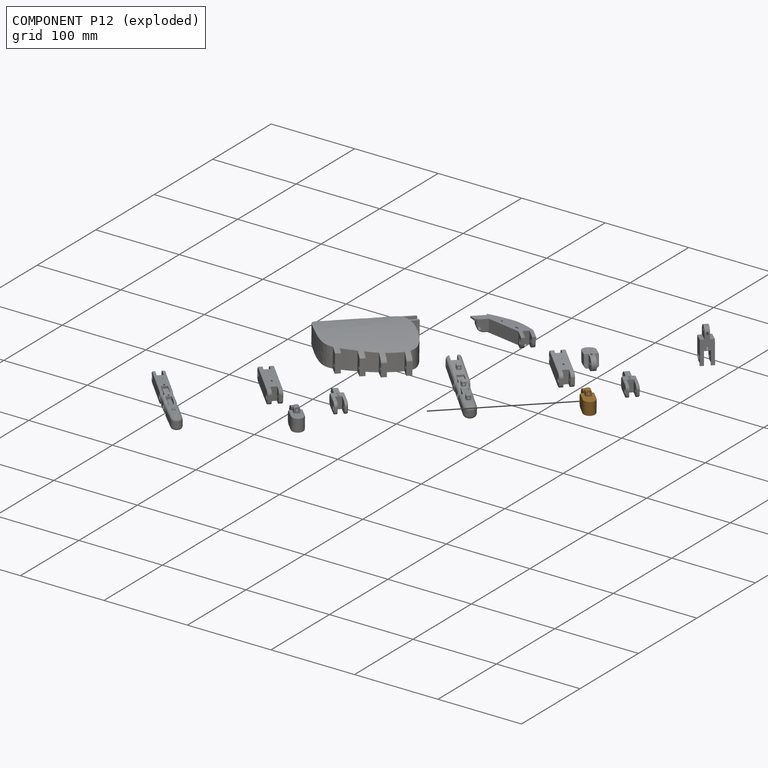
[diagram: component P12 — exploded]
COMPONENT P12 — geometry summary (no construction recipe available for this part):
  bounding box: 39.3 x 22.9 x 15.2 mm
  B-rep topology: 1 solid, 40 faces, 200 edges
  volume: 6272 mm^3 (46% of its bounding box)
  symmetry: mirror-symmetric across its x mid-plane
Held by: REVOLUTE mate "Revolute 2" to P7.
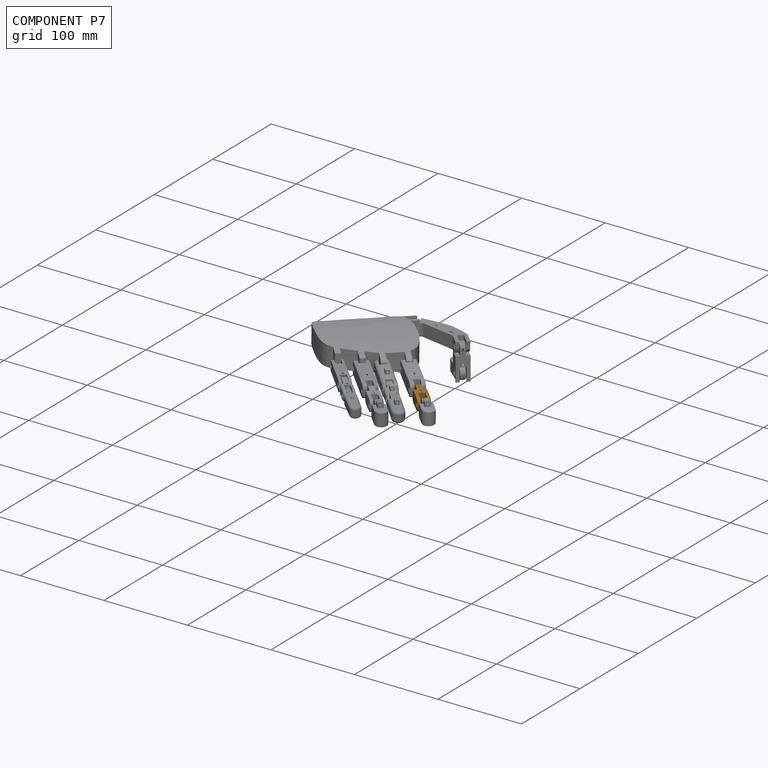
[diagram: component P7 — assembled]
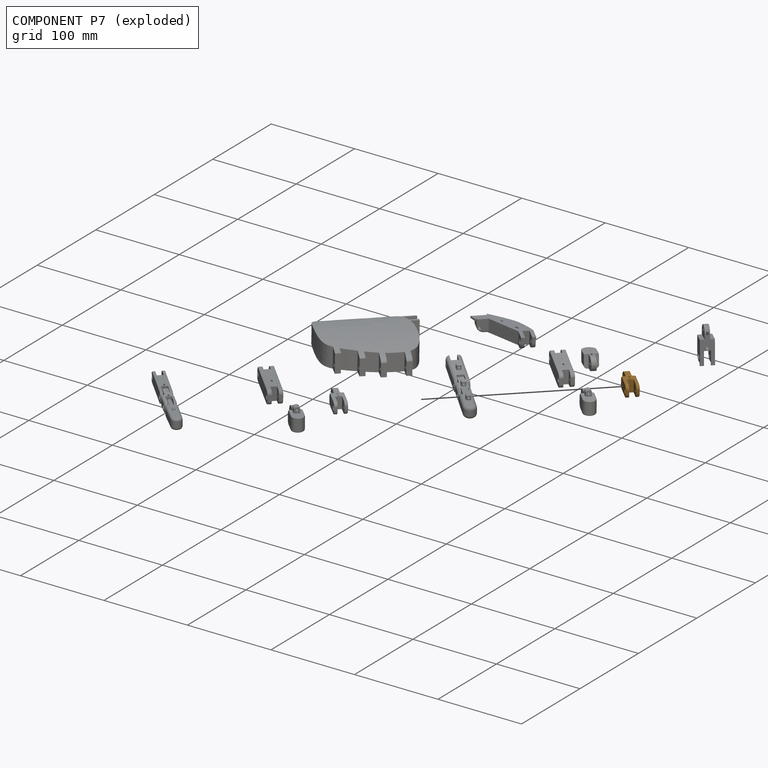
[diagram: component P7 — exploded]
COMPONENT P7 — geometry summary (no construction recipe available for this part):
  bounding box: 42.5 x 14.8 x 14.0 mm
  B-rep topology: 1 solid, 67 faces, 348 edges
  volume: 4544 mm^3 (52% of its bounding box)
  symmetry: mirror-symmetric across its y mid-plane
Held by: REVOLUTE mate "Revolute 1" to P2; REVOLUTE mate "Revolute 2" to P12.
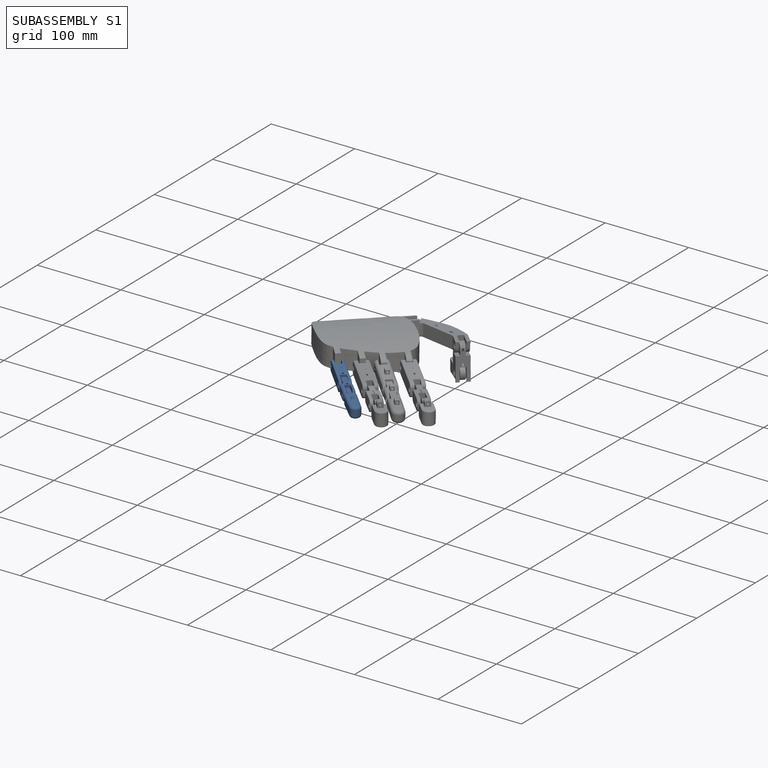
[diagram: subassembly S1 — assembled]
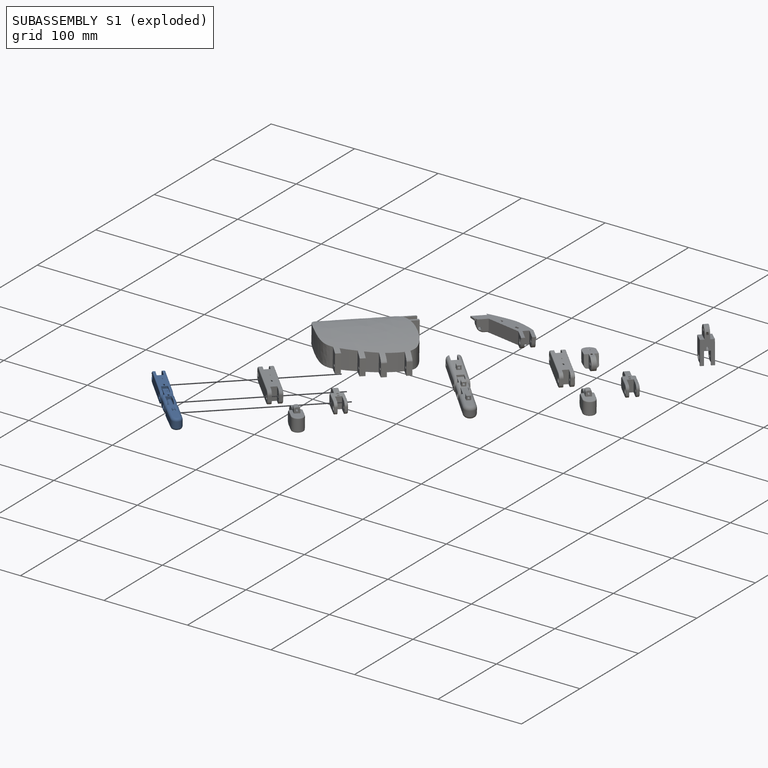
[diagram: subassembly S1 — exploded]
SUBASSEMBLY S1 — 3 components (P5, P8, P15), of which 1 recipe-attached; toured below.
Held by: REVOLUTE mate "Revolute 5" to P6.
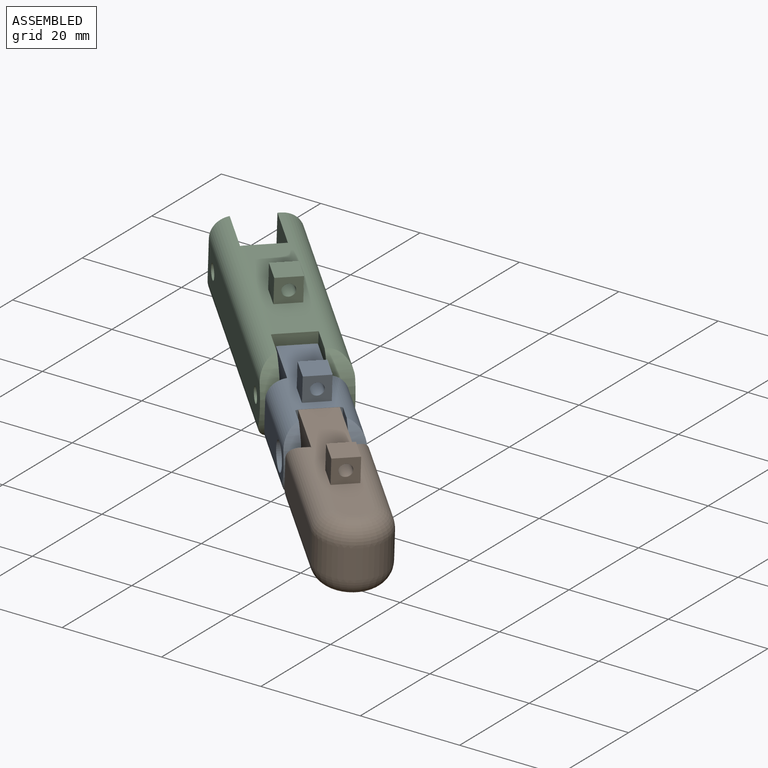
[diagram: subassembly S0 — assembled view]
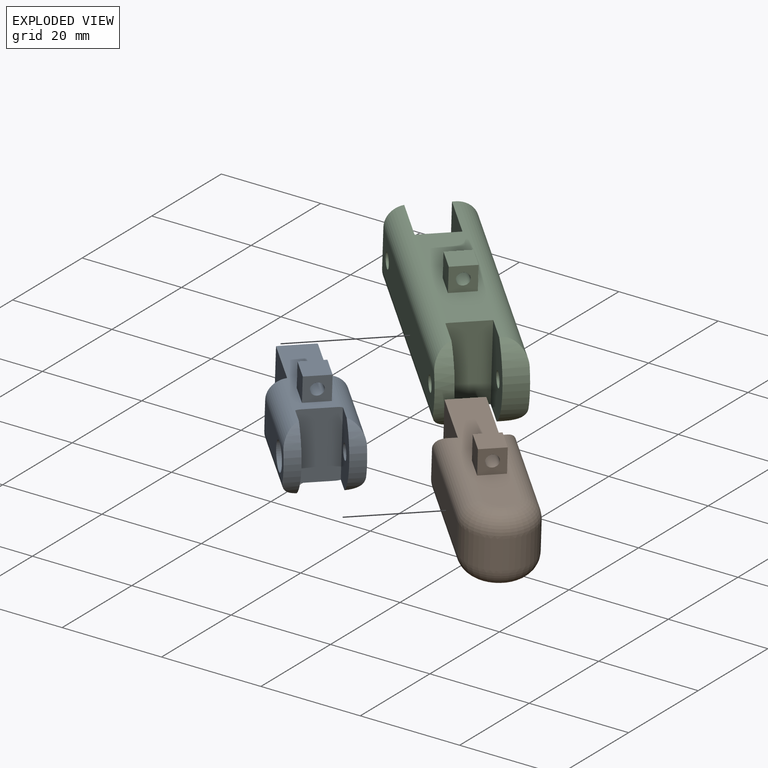
[diagram: subassembly S0 — exploded view]
SUBASSEMBLY S0 TOUR — 3 components, shown here in isolation at its own camera.

INTERNAL MATES
  1. REVOLUTE "Revolute 1": P0 <-> P10, axis (0.707, 0.707, -0.011) through (-201.33, -103.87, -6.93) mm
  2. REVOLUTE "Revolute 2": P1 <-> P0, axis (0.707, 0.707, -0.011) through (-186.92, -118.31, -8.72) mm
  3. REVOLUTE "Revolute 1": P0 <-> P10, axis (0.707, 0.707, -0.011) through (-201.33, -103.87, -6.93) mm
  4. REVOLUTE "Revolute 2": P1 <-> P0, axis (0.707, 0.707, -0.011) through (-186.92, -118.31, -8.72) mm

ASSEMBLY ORDER (within the subassembly)
  1. P0 — the base component [order heuristic]
  2. P1 [order heuristic]
  3. P10 [order heuristic]
Order-tag legend:
  [order heuristic] — this assembly is geometrically interlocked (no collision-free removal order exists), so components are listed in mate-graph order; insertion feasibility is not verified.
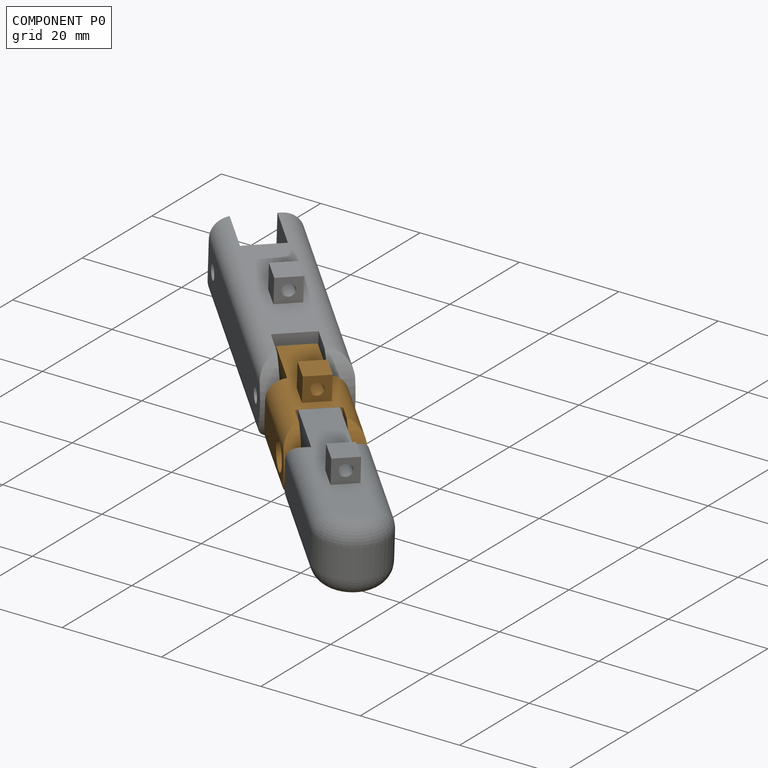
[diagram: component P0 — assembled]
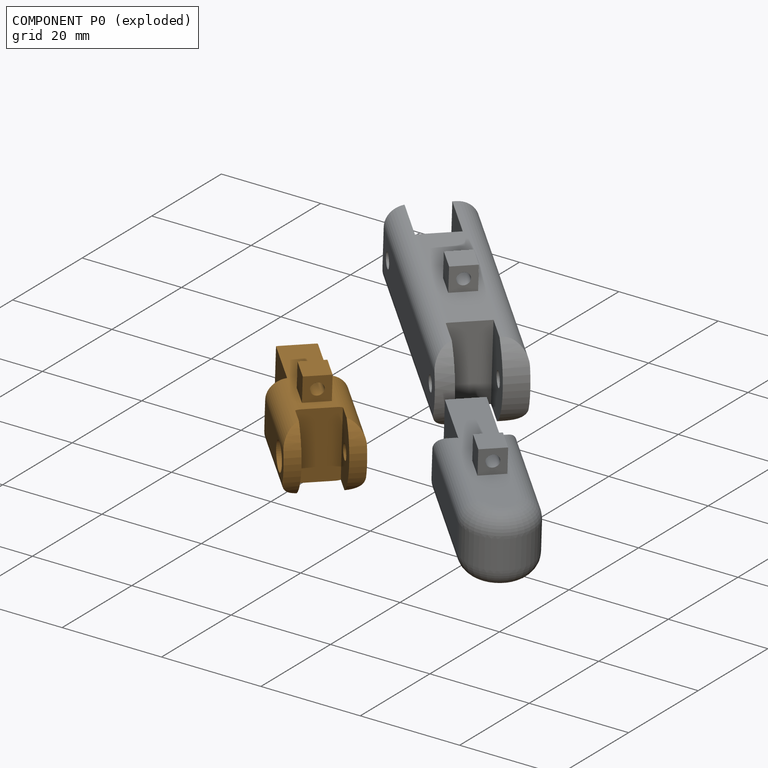
[diagram: component P0 — exploded]
COMPONENT P0 — geometry summary (no construction recipe available for this part):
  bounding box: 28.2 x 20.6 x 14.0 mm
  B-rep topology: 1 solid, 43 faces, 230 edges
  volume: 3344 mm^3 (41% of its bounding box)
Held by: REVOLUTE mate "Revolute 1" to P10; REVOLUTE mate "Revolute 2" to P1; REVOLUTE mate "Revolute 1" to P10; REVOLUTE mate "Revolute 2" to P1.
